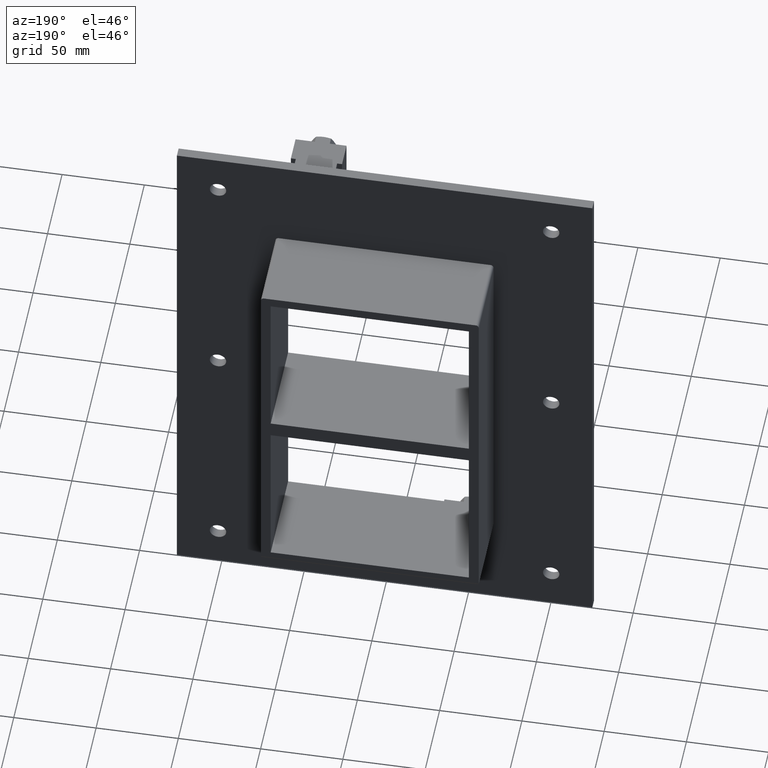
[diagram: clean part render]
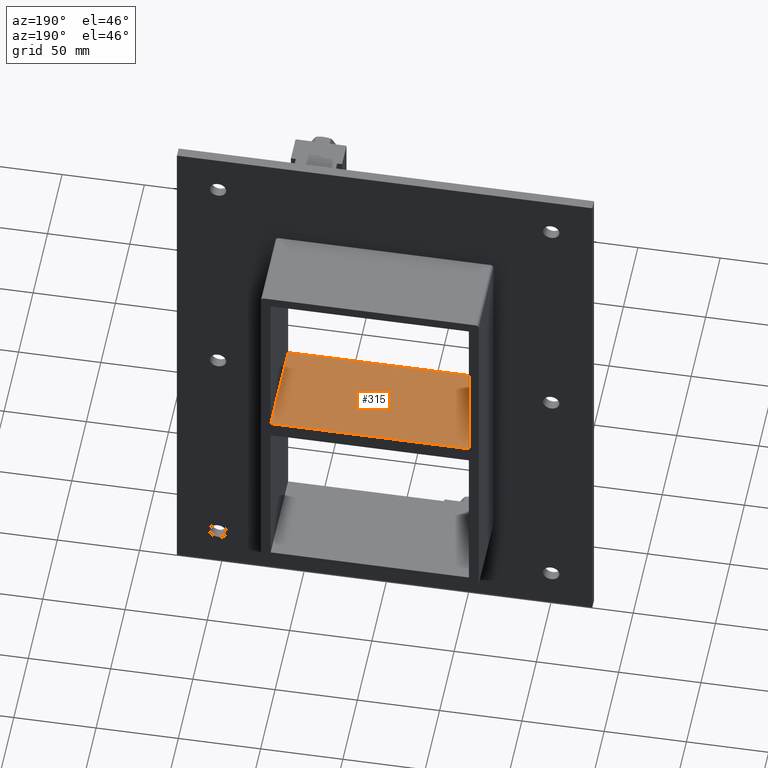
[diagram: same view with one face highlighted and labeled with its STEP entity id]
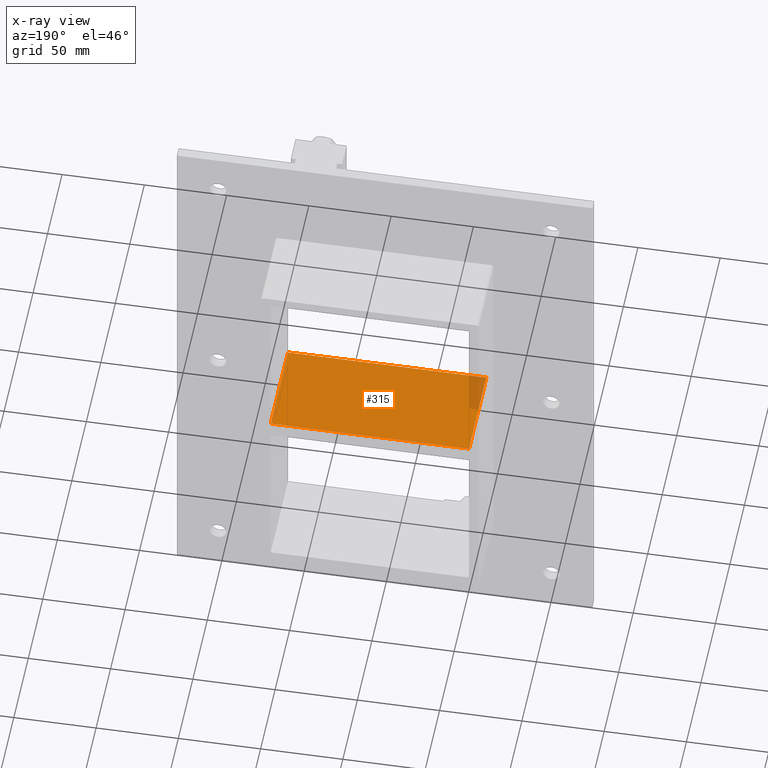
[diagram: x-ray of the same camera — body ghosted, the highlighted face saturated]
A machine part, auxiliary view. The second image highlights one B-rep face of the part: STEP entity #315.
The next image is the same camera in x-ray: the body ghosted, the highlighted face saturated — about 3% of this face is hidden behind the body in this view.
In plain terms, the highlighted planar face has unit normal (0, 0, 1).
Its self-contained STEP definition (entity closure, byte-faithful):
#276=CARTESIAN_POINT('',(-60.249999999998764,-3.0,5.0));
#277=DIRECTION('',(0.0,0.0,1.0));
#278=DIRECTION('',(1.0,0.0,0.0));
#279=AXIS2_PLACEMENT_3D('',#276,#277,#278);
#280=PLANE('',#279);
#281=CARTESIAN_POINT('',(-60.249999999998764,-3.0,5.0));
#282=VERTEX_POINT('',#281);
#283=CARTESIAN_POINT('',(60.249999999999588,-3.0,5.0));
#284=VERTEX_POINT('',#283);
#285=CARTESIAN_POINT('',(-60.249999999998764,-3.0,5.0));
#286=DIRECTION('',(1.0,0.0,0.0));
#287=VECTOR('',#286,120.49999999999834);
#288=LINE('',#285,#287);
#289=EDGE_CURVE('',#282,#284,#288,.T.);
#290=ORIENTED_EDGE('',*,*,#289,.T.);
#291=CARTESIAN_POINT('',(60.249999999999574,57.0,5.0));
#292=VERTEX_POINT('',#291);
#293=CARTESIAN_POINT('',(60.25,57.000000000000007,5.0));
#294=DIRECTION('',(0.0,-1.0,0.0));
#295=VECTOR('',#294,60.000000000000007);
#296=LINE('',#293,#295);
#297=EDGE_CURVE('',#292,#284,#296,.T.);
#298=ORIENTED_EDGE('',*,*,#297,.F.);
#299=CARTESIAN_POINT('',(-60.249999999998764,57.0,5.0));
#300=VERTEX_POINT('',#299);
#301=CARTESIAN_POINT('',(-60.249999999998764,57.0,5.0));
#302=DIRECTION('',(1.0,0.0,0.0));
#303=VECTOR('',#302,120.49999999999834);
#304=LINE('',#301,#303);
#305=EDGE_CURVE('',#300,#292,#304,.T.);
#306=ORIENTED_EDGE('',*,*,#305,.F.);
#307=CARTESIAN_POINT('',(-60.249999999999993,-3.0,5.0));
#308=DIRECTION('',(0.0,1.0,0.0));
#309=VECTOR('',#308,60.000000000000007);
#310=LINE('',#307,#309);
#311=EDGE_CURVE('',#282,#300,#310,.T.);
#312=ORIENTED_EDGE('',*,*,#311,.F.);
#313=EDGE_LOOP('',(#290,#298,#306,#312));
#314=FACE_OUTER_BOUND('',#313,.T.);
#315=ADVANCED_FACE('',(#314),#280,.T.);